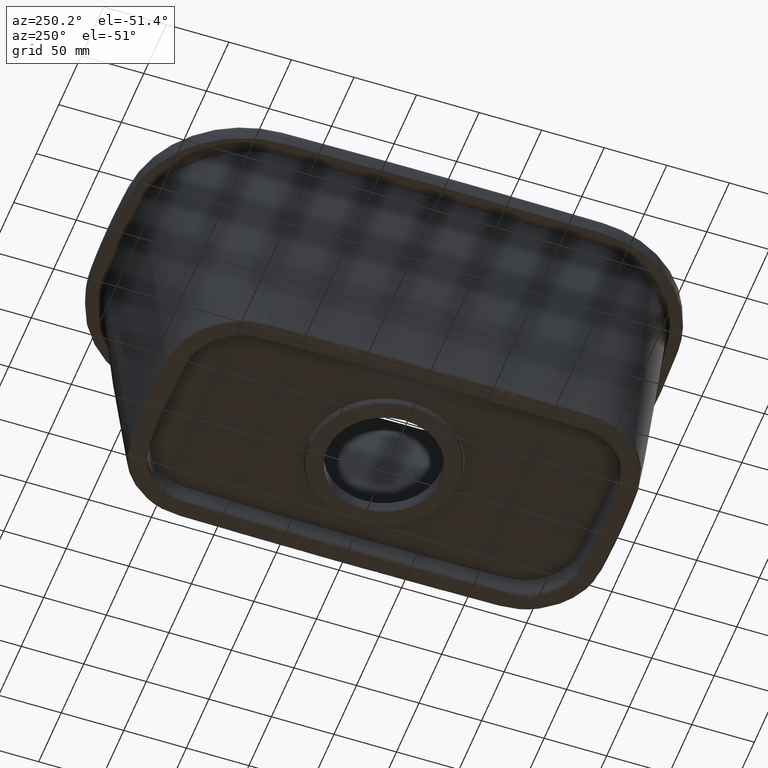
[diagram: clean part render]
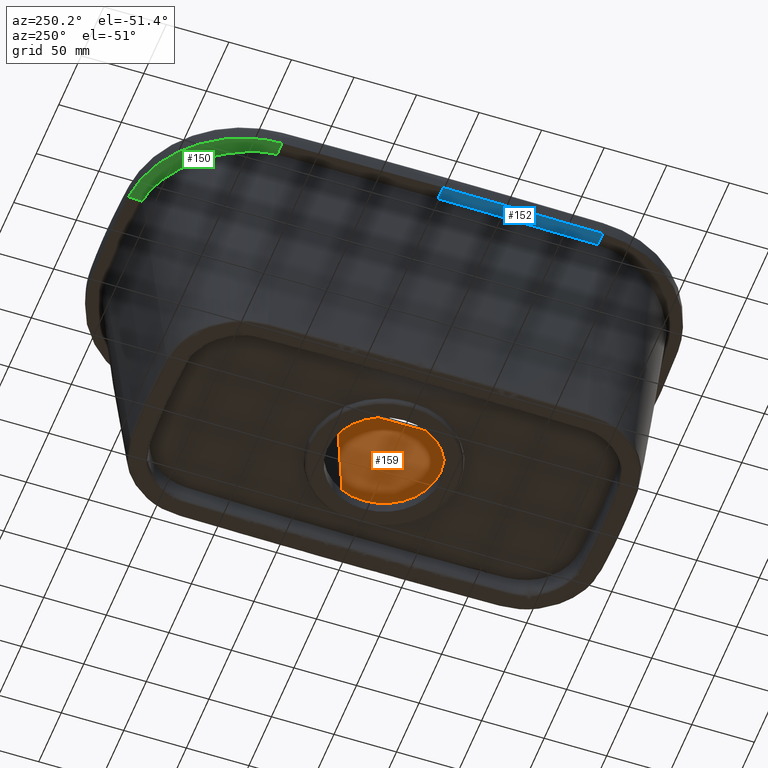
[diagram: same view with three faces highlighted in distinct colors, each labeled with its STEP entity id]
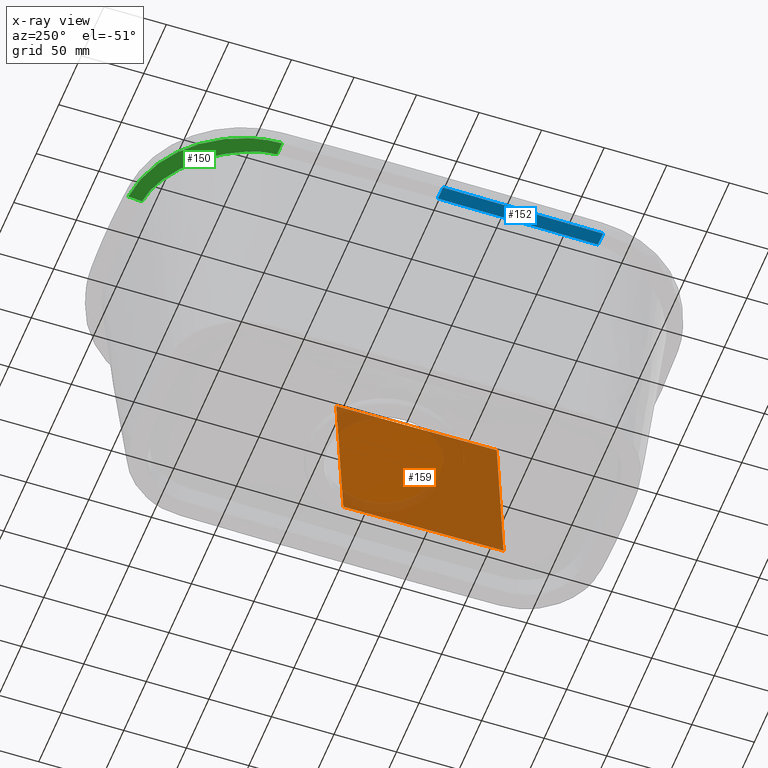
[diagram: x-ray of the same camera — body ghosted, the three highlighted faces saturated]
A machine part, auxiliary view with three faces highlighted in distinct colors.
The next image is the same camera in x-ray (body ghosted, the three faces saturated) — at least one of them is partly hidden behind the body in this view.
Their STEP definitions:

[orange] entity #159 — the highlighted face is a freeform B-spline surface patch.
#82=B_SPLINE_SURFACE_WITH_KNOTS('',3,3,((#74260,#74261,#74262,#74263,#74264,
#74265,#74266,#74267,#74268,#74269,#74270,#74271,#74272,#74273,#74274,#74275,
#74276,#74277,#74278,#74279,#74280,#74281,#74282,#74283,#74284,#74285,#74286,
#74287,#74288,#74289,#74290,#74291,#74292,#74293,#74294,#74295,#74296,#74297,
#74298,#74299,#74300,#74301,#74302,#74303,#74304,#74305,#74306,#74307,#74308,
#74309,#74310,#74311,#74312,#74313,#74314,#74315,#74316,#74317,#74318,#74319,
#74320,#74321),(#74322,#74323,#74324,#74325,#74326,#74327,#74328,#74329,
#74330,#74331,#74332,#74333,#74334,#74335,#74336,#74337,#74338,#74339,#74340,
#74341,#74342,#74343,#74344,#74345,#74346,#74347,#74348,#74349,#74350,#74351,
#74352,#74353,#74354,#74355,#74356,#74357,#74358,#74359,#74360,#74361,#74362,
#74363,#74364,#74365,#74366,#74367,#74368,#74369,#74370,#74371,#74372,#74373,
#74374,#74375,#74376,#74377,#74378,#74379,#74380,#74381,#74382,#74383),
(#74384,#74385,#74386,#74387,#74388,#74389,#74390,#74391,#74392,#74393,
#74394,#74395,#74396,#74397,#74398,#74399,#74400,#74401,#74402,#74403,#74404,
#74405,#74406,#74407,#74408,#74409,#74410,#74411,#74412,#74413,#74414,#74415,
#74416,#74417,#74418,#74419,#74420,#74421,#74422,#74423,#74424,#74425,#74426,
#74427,#74428,#74429,#74430,#74431,#74432,#74433,#74434,#74435,#74436,#74437,
#74438,#74439,#74440,#74441,#74442,#74443,#74444,#74445),(#74446,#74447,
#74448,#74449,#74450,#74451,#74452,#74453,#74454,#74455,#74456,#74457,#74458,
#74459,#74460,#74461,#74462,#74463,#74464,#74465,#74466,#74467,#74468,#74469,
#74470,#74471,#74472,#74473,#74474,#74475,#74476,#74477,#74478,#74479,#74480,
#74481,#74482,#74483,#74484,#74485,#74486,#74487,#74488,#74489,#74490,#74491,
#74492,#74493,#74494,#74495,#74496,#74497,#74498,#74499,#74500,#74501,#74502,
#74503,#74504,#74505,#74506,#74507)),.UNSPECIFIED.,.F.,.F.,.F.,(4,4),(4,
1,1,1,1,1,1,1,1,1,1,1,1,1,1,1,1,1,1,1,1,1,1,1,1,1,1,1,1,1,1,1,1,1,1,1,1,
1,1,1,1,1,1,1,1,1,1,1,1,1,1,1,1,1,1,1,1,1,1,4),(0.,1.),(0.,0.0625,0.064453125,
0.06640625,0.06689453125,0.0673828125,0.068359375,0.0703125,0.07421875,
0.078125,0.08203125,0.0859375,0.08984375,0.091796875,0.0927734375,0.09326171875,
0.09375,0.1015625,0.109375,0.1171875,0.119140625,0.12109375,0.123046875,
0.125,0.12890625,0.1328125,0.140625,0.1484375,0.15234375,0.1533203125,0.15380859375,
0.154296875,0.15478515625,0.1552734375,0.15625,0.1640625,0.171875,0.1796875,
0.18359375,0.1875,0.189453125,0.19140625,0.1953125,0.203125,0.2109375,0.21875,
0.2265625,0.23046875,0.234375,0.23486328125,0.2353515625,0.236328125,0.23828125,
0.2421875,0.25,0.3125,0.375,0.5,0.75,1.),.UNSPECIFIED.);
#159=ADVANCED_FACE('',(#264),#82,.T.);
#264=FACE_OUTER_BOUND('',#346,.T.);
#346=EDGE_LOOP('',(#690,#691,#692,#693));
#425=(
BOUNDED_CURVE()
B_SPLINE_CURVE(3,(#74249,#74250,#74251,#74252,#74253,#74254,#74255,#74256,
#74257,#74258,#74259),.UNSPECIFIED.,.F.,.F.)
B_SPLINE_CURVE_WITH_KNOTS((4,1,1,1,1,1,1,1,4),(0.,0.00193781148128802,0.00705607911471732,
0.0172926143815759,0.0991848965164446,0.181077178651313,0.344861742921051,
0.672430871460525,1.),.UNSPECIFIED.)
CURVE()
GEOMETRIC_REPRESENTATION_ITEM()
RATIONAL_B_SPLINE_CURVE((1.,1.,1.,1.,1.,1.,1.,1.,1.,1.,1.))
REPRESENTATION_ITEM('')
);
#690=ORIENTED_EDGE('',*,*,#1075,.F.);
#691=ORIENTED_EDGE('',*,*,#1074,.T.);
#692=ORIENTED_EDGE('',*,*,#1067,.T.);
#693=ORIENTED_EDGE('',*,*,#1076,.F.);
#900=VERTEX_POINT('',#68950);
#903=VERTEX_POINT('',#69028);
#908=VERTEX_POINT('',#73962);
#909=VERTEX_POINT('',#74248);
#1067=EDGE_CURVE('',#900,#903,#1219,.T.);
#1074=EDGE_CURVE('',#908,#900,#1225,.T.);
#1075=EDGE_CURVE('',#908,#909,#1226,.T.);
#1076=EDGE_CURVE('',#909,#903,#425,.T.);
#1219=B_SPLINE_CURVE_WITH_KNOTS('',3,(#69029,#69030,#69031,#69032),
 .UNSPECIFIED.,.F.,.F.,(4,4),(0.,1.),.UNSPECIFIED.);
#1225=B_SPLINE_CURVE_WITH_KNOTS('',3,(#73985,#73986,#73987,#73988,#73989,
#73990,#73991,#73992,#73993,#73994,#73995),.UNSPECIFIED.,.F.,.F.,(4,1,1,
1,1,1,1,1,4),(0.,0.00193781144588944,0.00705607907950026,0.0172926143467219,
0.0991848964844951,0.181077178622268,0.344861742897815,0.672430871448907,
1.),.UNSPECIFIED.);
#1226=B_SPLINE_CURVE_WITH_KNOTS('',3,(#74244,#74245,#74246,#74247),
 .UNSPECIFIED.,.F.,.F.,(4,4),(0.,1.),.UNSPECIFIED.);
#68950=CARTESIAN_POINT('',(90.3561415384573,1.23908819689549E-15,35.724));
#69028=CARTESIAN_POINT('',(89.3414877071845,-127.720610265477,35.724));
#69029=CARTESIAN_POINT('',(90.3561415384572,-1.44638745425141E-8,35.724));
#69030=CARTESIAN_POINT('',(90.3561416488253,-42.5466784348316,35.724));
#69031=CARTESIAN_POINT('',(90.0179339004727,-85.09335684152,35.724));
#69032=CARTESIAN_POINT('',(89.3415182934245,-127.720610768516,35.724));
#73962=CARTESIAN_POINT('',(106.056943543616,6.22997404768117E-15,175.499999413456));
#73985=CARTESIAN_POINT('',(106.056943543975,-2.28802142859179E-8,175.499999413415));
#73986=CARTESIAN_POINT('',(106.046916526375,-2.28510213036558E-8,175.410506219508));
#73987=CARTESIAN_POINT('',(106.009380445179,-2.27417327407693E-8,175.077548966085));
#73988=CARTESIAN_POINT('',(105.919435325029,-2.24798755998901E-8,174.275707065365));
#73989=CARTESIAN_POINT('',(105.409642728938,-2.09956982355486E-8,169.738960482586));
#73990=CARTESIAN_POINT('',(104.49951047439,-1.83459983316148E-8,161.635289556129));
#73991=CARTESIAN_POINT('',(102.78516272458,-1.3354942152155E-8,146.373315064477));
#73992=CARTESIAN_POINT('',(99.7850541624127,-4.62061292005878E-9,119.664859704086));
#73993=CARTESIAN_POINT('',(95.4991847878874,7.85698242578015E-9,81.5099234749559));
#73994=CARTESIAN_POINT('',(92.0704892882674,1.78390600902301E-8,50.985974491652));
#73995=CARTESIAN_POINT('',(90.3561415384573,2.28301128002428E-8,35.724));
#74244=CARTESIAN_POINT('',(106.056943544251,3.12648240630153E-8,175.499999415881));
#74245=CARTESIAN_POINT('',(106.056943654781,-42.6401000420839,175.499999415881));
#74246=CARTESIAN_POINT('',(105.718241805081,-85.2802001068341,175.499999415881));
#74247=CARTESIAN_POINT('',(105.040837995178,-127.96972990916,175.499999415881));
#74248=CARTESIAN_POINT('',(105.040837995181,-127.96972990916,175.499999417121));
#74249=CARTESIAN_POINT('',(105.040837995453,-127.969729909165,175.499999418329));
#74250=CARTESIAN_POINT('',(105.030811924324,-127.969570813976,175.410506222855));
#74251=CARTESIAN_POINT('',(104.993279386696,-127.968975242086,175.07754896773));
#74252=CARTESIAN_POINT('',(104.903342758031,-127.967548114282,174.275707065365));
#74253=CARTESIAN_POINT('',(104.393598291177,-127.959459413246,169.738960482586));
#74254=CARTESIAN_POINT('',(103.483551961713,-127.945018662701,161.635289556129));
#74255=CARTESIAN_POINT('',(101.769366062526,-127.91781770583,146.373315064477));
#74256=CARTESIAN_POINT('',(98.7695407389501,-127.870216031306,119.664859704086));
#74257=CARTESIAN_POINT('',(94.4840759909839,-127.802213639129,81.5099234749559));
#74258=CARTESIAN_POINT('',(91.055704192611,-127.747811725387,50.985974491652));
#74259=CARTESIAN_POINT('',(89.3415182934245,-127.720610768516,35.724));
#74260=CARTESIAN_POINT('',(129.981515976492,-128.365492297838,159.736));
#74261=CARTESIAN_POINT('',(129.85582680983,-128.363497843442,163.573432496649));
#74262=CARTESIAN_POINT('',(129.726209856711,-128.361441062347,167.530784758819));
#74263=CARTESIAN_POINT('',(129.592665117133,-128.359321954552,171.608056786508));
#74264=CARTESIAN_POINT('',(129.583547753448,-128.359177278868,171.878309662545));
#74265=CARTESIAN_POINT('',(129.57821576207,-128.359092670036,172.057322503594));
#74266=CARTESIAN_POINT('',(129.574090088558,-128.359027203235,172.172841752611));
#74267=CARTESIAN_POINT('',(129.559954525637,-128.358802898019,172.360999202684));
#74268=CARTESIAN_POINT('',(129.497306562238,-128.357808790816,172.757569173706));
#74269=CARTESIAN_POINT('',(129.30239384058,-128.354715886751,173.327595876184));
#74270=CARTESIAN_POINT('',(128.88996411976,-128.348171390583,173.962344390068));
#74271=CARTESIAN_POINT('',(128.323782327364,-128.33918713367,174.479199506181));
#74272=CARTESIAN_POINT('',(127.660690825717,-128.328665099072,174.830349708915));
#74273=CARTESIAN_POINT('',(127.078261742355,-128.319423027728,174.972777118));
#74274=CARTESIAN_POINT('',(126.696724283191,-128.313368734564,175.001295745153));
#74275=CARTESIAN_POINT('',(126.493288257057,-128.310140581436,174.999945488132));
#74276=CARTESIAN_POINT('',(126.373990075768,-128.308247540147,174.999938148568));
#74277=CARTESIAN_POINT('',(125.833702622373,-128.299674178457,175.00024544739));
#74278=CARTESIAN_POINT('',(124.843985315227,-128.283969196985,175.000125333683));
#74279=CARTESIAN_POINT('',(123.404381625722,-128.261125351468,175.00011569263));
#74280=CARTESIAN_POINT('',(122.326127205291,-128.24401544991,174.999529998691));
#74281=CARTESIAN_POINT('',(121.603959727598,-128.232555988936,175.00047000131));
#74282=CARTESIAN_POINT('',(121.25208081593,-128.226972322016,174.998677385468));
#74283=CARTESIAN_POINT('',(120.903524361958,-128.221441376349,175.017974313482));
#74284=CARTESIAN_POINT('',(120.437284794277,-128.214043017526,175.071671762564));
#74285=CARTESIAN_POINT('',(119.848924870239,-128.20470683472,175.192549710164));
#74286=CARTESIAN_POINT('',(118.92430654775,-128.190034853621,175.501851101058));
#74287=CARTESIAN_POINT('',(117.838684571669,-128.172808042595,176.105210107233));
#74288=CARTESIAN_POINT('',(116.946474103287,-128.158650314147,176.944696407813));
#74289=CARTESIAN_POINT('',(116.489169698172,-128.151393739813,177.561013713681));
#74290=CARTESIAN_POINT('',(116.318641669046,-128.148687775677,177.829989978799));
#74291=CARTESIAN_POINT('',(116.259008620468,-128.14774150959,177.928550128868));
#74292=CARTESIAN_POINT('',(116.21549162745,-128.147050975471,178.002820900404));
#74293=CARTESIAN_POINT('',(116.171929793872,-128.146359729815,178.077078583078));
#74294=CARTESIAN_POINT('',(116.112161710956,-128.145411320983,178.175598214142));
#74295=CARTESIAN_POINT('',(115.816855167013,-128.140725352811,178.639937682852));
#74296=CARTESIAN_POINT('',(115.16074543422,-128.13031410596,179.425137531349));
#74297=CARTESIAN_POINT('',(113.960165583101,-128.11126312627,180.301087489298));
#74298=CARTESIAN_POINT('',(112.813571647692,-128.093068803122,180.761889109409));
#74299=CARTESIAN_POINT('',(111.873531586492,-128.07815210758,180.953159696761));
#74300=CARTESIAN_POINT('',(111.286764877042,-128.06884120614,181.001622284464));
#74301=CARTESIAN_POINT('',(110.835946217219,-128.061687548576,181.000574975427));
#74302=CARTESIAN_POINT('',(110.394458582115,-128.054681957102,180.974194756112));
#74303=CARTESIAN_POINT('',(109.591287900875,-128.041937125243,180.860251913716));
#74304=CARTESIAN_POINT('',(108.436766026665,-128.023617000382,180.482243830425));
#74305=CARTESIAN_POINT('',(107.156357564646,-128.003299288418,179.672063733402));
#74306=CARTESIAN_POINT('',(106.115657923138,-127.98678531168,178.561064264965));
#74307=CARTESIAN_POINT('',(105.521924717061,-127.977363864835,177.478812223344));
#74308=CARTESIAN_POINT('',(105.222182090151,-127.972607504238,176.586487122861));
#74309=CARTESIAN_POINT('',(105.12176165866,-127.971014017892,176.112787344255));
#74310=CARTESIAN_POINT('',(105.081072356705,-127.970368353995,175.838881240767));
#74311=CARTESIAN_POINT('',(105.066321980895,-127.970134292837,175.728899542347));
#74312=CARTESIAN_POINT('',(105.044247818267,-127.96978401674,175.529659514555));
#74313=CARTESIAN_POINT('',(104.996510803007,-127.96902651868,175.106359087034));
#74314=CARTESIAN_POINT('',(104.903342758031,-127.967548114282,174.275707065365));
#74315=CARTESIAN_POINT('',(104.393598291177,-127.959459413246,169.738960482586));
#74316=CARTESIAN_POINT('',(103.483551961713,-127.945018662701,161.635289556129));
#74317=CARTESIAN_POINT('',(101.769366062526,-127.91781770583,146.373315064477));
#74318=CARTESIAN_POINT('',(98.7695407389501,-127.870216031306,119.664859704086));
#74319=CARTESIAN_POINT('',(94.4840759909839,-127.802213639129,81.5099234749559));
#74320=CARTESIAN_POINT('',(91.055704192611,-127.747811725387,50.985974491652));
#74321=CARTESIAN_POINT('',(89.3415182934245,-127.720610768516,35.724));
#74322=CARTESIAN_POINT('',(131.33946318581,-42.7885778862101,159.736));
#74323=CARTESIAN_POINT('',(131.213758195995,-42.7875805962452,163.573432496649));
#74324=CARTESIAN_POINT('',(131.084124925248,-42.7865521409689,167.530784758819));
#74325=CARTESIAN_POINT('',(130.95056337357,-42.7854925203811,171.608056786508));
#74326=CARTESIAN_POINT('',(130.941444862089,-42.7854201779864,171.878309662545));
#74327=CARTESIAN_POINT('',(130.936112199461,-42.7853778709074,172.057322503594));
#74328=CARTESIAN_POINT('',(130.931986006563,-42.7853451354466,172.172841752611));
#74329=CARTESIAN_POINT('',(130.9178486641,-42.7852329757798,172.360999202684));
#74330=CARTESIAN_POINT('',(130.855192813877,-42.7847358908927,172.757569173706));
#74331=CARTESIAN_POINT('',(130.660255554432,-42.7831893415241,173.327595876184));
#74332=CARTESIAN_POINT('',(130.247773912361,-42.7799168874793,173.962344390068));
#74333=CARTESIAN_POINT('',(129.681520842689,-42.7754244762805,174.479199506181));
#74334=CARTESIAN_POINT('',(129.018345863691,-42.7701631278445,174.830349708915));
#74335=CARTESIAN_POINT('',(128.435843457663,-42.7655418013169,174.972777118));
#74336=CARTESIAN_POINT('',(128.054257966311,-42.7625144642013,175.001295745153));
#74337=CARTESIAN_POINT('',(127.850796329381,-42.7609002860445,174.999945488132));
#74338=CARTESIAN_POINT('',(127.731483129507,-42.7599537058244,174.999938148568));
#74339=CARTESIAN_POINT('',(127.191127658705,-42.7556667551686,175.00024544739));
#74340=CARTESIAN_POINT('',(126.20128575491,-42.7478137701838,175.000125333683));
#74341=CARTESIAN_POINT('',(124.761500832043,-42.7363911285102,175.00011569263));
#74342=CARTESIAN_POINT('',(123.683110668925,-42.7278356392687,174.999529998691));
#74343=CARTESIAN_POINT('',(122.960852276739,-42.7221055481428,175.00047000131));
#74344=CARTESIAN_POINT('',(122.60892906663,-42.7193135389601,174.998677385468));
#74345=CARTESIAN_POINT('',(122.260328732486,-42.7165478920632,175.017974313482));
#74346=CARTESIAN_POINT('',(121.794030469371,-42.712848479819,175.071671762564));
#74347=CARTESIAN_POINT('',(121.205596476026,-42.7081800945986,175.192549710164));
#74348=CARTESIAN_POINT('',(120.280861752274,-42.7008436423099,175.501851101058));
#74349=CARTESIAN_POINT('',(119.195103105996,-42.6922296946546,176.105210107233));
#74350=CARTESIAN_POINT('',(118.302780316213,-42.685150384875,176.944696407813));
#74351=CARTESIAN_POINT('',(117.845418340522,-42.6815218693374,177.561013713681));
#74352=CARTESIAN_POINT('',(117.674868843426,-42.6801688021105,177.829989978799));
#74353=CARTESIAN_POINT('',(117.615228287576,-42.6796956392874,177.928550128868));
#74354=CARTESIAN_POINT('',(117.571705816153,-42.6793503504961,178.002820900404));
#74355=CARTESIAN_POINT('',(117.528138498526,-42.679004705914,178.077078583078));
#74356=CARTESIAN_POINT('',(117.468362891338,-42.678530471651,178.175598214142));
#74357=CARTESIAN_POINT('',(117.173019170915,-42.6761873400934,178.639937682852));
#74358=CARTESIAN_POINT('',(116.516826839714,-42.6709813890175,179.425137531349));
#74359=CARTESIAN_POINT('',(115.316095846218,-42.6614552996223,180.301087489298));
#74360=CARTESIAN_POINT('',(114.169357564782,-42.6523575654578,180.761889109409));
#74361=CARTESIAN_POINT('',(113.229199160859,-42.6448987482457,180.953159696761));
#74362=CARTESIAN_POINT('',(112.642358582674,-42.6402430045039,181.001622284464));
#74363=CARTESIAN_POINT('',(112.191483168773,-42.6366659505907,181.000574975427));
#74364=CARTESIAN_POINT('',(111.749939954283,-42.6331629343815,180.974194756112));
#74365=CARTESIAN_POINT('',(110.946668160964,-42.6267901173615,180.860251913716));
#74366=CARTESIAN_POINT('',(109.792000942669,-42.6176294783818,180.482243830425));
#74367=CARTESIAN_POINT('',(108.511431288558,-42.6074699829844,179.672063733402));
#74368=CARTESIAN_POINT('',(107.470600632177,-42.5992124749067,178.561064264965));
#74369=CARTESIAN_POINT('',(106.876792680346,-42.5945014549835,177.478812223344));
#74370=CARTESIAN_POINT('',(106.577012318492,-42.5921231249983,176.586487122861));
#74371=CARTESIAN_POINT('',(106.476579244958,-42.5913263316767,176.112787344255));
#74372=CARTESIAN_POINT('',(106.43588482058,-42.5910034794087,175.838881240767));
#74373=CARTESIAN_POINT('',(106.421132587828,-42.5908864414637,175.728899542347));
#74374=CARTESIAN_POINT('',(106.399055646258,-42.5907112923919,175.529659514555));
#74375=CARTESIAN_POINT('',(106.35131262133,-42.5903325195228,175.106359087034));
#74376=CARTESIAN_POINT('',(106.258132847322,-42.5895932707969,174.275707065365));
#74377=CARTESIAN_POINT('',(105.748324208152,-42.585548665721,169.738960482586));
#74378=CARTESIAN_POINT('',(104.83816331191,-42.5783278359859,161.635289556129));
#74379=CARTESIAN_POINT('',(103.123761611892,-42.5647265015137,146.373315064477));
#74380=CARTESIAN_POINT('',(100.123558636861,-42.5409241661873,119.664859704086));
#74381=CARTESIAN_POINT('',(95.8375543868159,-42.5069208300068,81.5099234749559));
#74382=CARTESIAN_POINT('',(92.40875098678,-42.4797181610624,50.985974491652));
#74383=CARTESIAN_POINT('',(90.6943492867621,-42.4661168265902,35.724));
#74384=CARTESIAN_POINT('',(131.339463185883,42.7885361988748,159.736));
#74385=CARTESIAN_POINT('',(131.213758196068,42.78753890891,163.573432496649));
#74386=CARTESIAN_POINT('',(131.084124925322,42.7865104536337,167.530784758819));
#74387=CARTESIAN_POINT('',(130.950563373644,42.7854508330461,171.608056786508));
#74388=CARTESIAN_POINT('',(130.941444862163,42.7853784906514,171.878309662545));
#74389=CARTESIAN_POINT('',(130.936112199534,42.7853361835724,172.057322503594));
#74390=CARTESIAN_POINT('',(130.931986006637,42.7853034481116,172.172841752611));
#74391=CARTESIAN_POINT('',(130.917848664174,42.7851912884449,172.360999202684));
#74392=CARTESIAN_POINT('',(130.85519281395,42.7846942035578,172.757569173706));
#74393=CARTESIAN_POINT('',(130.660255554506,42.7831476541893,173.327595876184));
#74394=CARTESIAN_POINT('',(130.247773912435,42.779875200145,173.962344390068));
#74395=CARTESIAN_POINT('',(129.681520842763,42.7753827889467,174.479199506181));
#74396=CARTESIAN_POINT('',(129.018345863765,42.7701214405113,174.830349708915));
#74397=CARTESIAN_POINT('',(128.435843457737,42.7655001139843,174.972777118));
#74398=CARTESIAN_POINT('',(128.054257966384,42.762472776869,175.001295745153));
#74399=CARTESIAN_POINT('',(127.850796329455,42.7608585987124,174.999945488132));
#74400=CARTESIAN_POINT('',(127.731483129581,42.7599120184924,174.999938148568));
#74401=CARTESIAN_POINT('',(127.191127658778,42.7556250678371,175.00024544739));
#74402=CARTESIAN_POINT('',(126.201285754984,42.7477720828532,175.000125333683));
#74403=CARTESIAN_POINT('',(124.761500832117,42.7363494411809,175.00011569263));
#74404=CARTESIAN_POINT('',(123.683110668998,42.7277939519404,174.999529998691));
#74405=CARTESIAN_POINT('',(122.960852276813,42.7220638608152,175.00047000131));
#74406=CARTESIAN_POINT('',(122.608929066704,42.7192718516329,174.998677385468));
#74407=CARTESIAN_POINT('',(122.26032873256,42.7165062047362,175.017974313482));
#74408=CARTESIAN_POINT('',(121.794030469444,42.7128067924925,175.071671762564));
#74409=CARTESIAN_POINT('',(121.2055964761,42.7081384072726,175.192549710164));
#74410=CARTESIAN_POINT('',(120.280861752348,42.7008019549848,175.501851101058));
#74411=CARTESIAN_POINT('',(119.19510310607,42.6921880073305,176.105210107233));
#74412=CARTESIAN_POINT('',(118.302780316287,42.6851086975518,176.944696407813));
#74413=CARTESIAN_POINT('',(117.845418340596,42.6814801820146,177.561013713681));
#74414=CARTESIAN_POINT('',(117.6748688435,42.6801271147878,177.829989978799));
#74415=CARTESIAN_POINT('',(117.615228287649,42.6796539519648,177.928550128868));
#74416=CARTESIAN_POINT('',(117.571705816227,42.6793086631735,178.002820900404));
#74417=CARTESIAN_POINT('',(117.5281384986,42.6789630185915,178.077078583078));
#74418=CARTESIAN_POINT('',(117.468362891411,42.6784887843285,178.175598214142));
#74419=CARTESIAN_POINT('',(117.173019170988,42.6761456527712,178.639937682852));
#74420=CARTESIAN_POINT('',(116.516826839788,42.6709397016959,179.425137531349));
#74421=CARTESIAN_POINT('',(115.316095846292,42.6614136123018,180.301087489298));
#74422=CARTESIAN_POINT('',(114.169357564856,42.6523158781384,180.761889109409));
#74423=CARTESIAN_POINT('',(113.229199160933,42.6448570609271,180.953159696761));
#74424=CARTESIAN_POINT('',(112.642358582748,42.6402013171859,181.001622284464));
#74425=CARTESIAN_POINT('',(112.191483168846,42.6366242632731,181.000574975427));
#74426=CARTESIAN_POINT('',(111.749939954357,42.6331212470644,180.974194756112));
#74427=CARTESIAN_POINT('',(110.946668161037,42.6267484300451,180.860251913716));
#74428=CARTESIAN_POINT('',(109.792000942742,42.6175877910664,180.482243830425));
#74429=CARTESIAN_POINT('',(108.511431288631,42.6074282956703,179.672063733402));
#74430=CARTESIAN_POINT('',(107.470600632251,42.5991707875935,178.561064264965));
#74431=CARTESIAN_POINT('',(106.876792680419,42.5944597676709,177.478812223344));
#74432=CARTESIAN_POINT('',(106.577012318565,42.592081437686,176.586487122861));
#74433=CARTESIAN_POINT('',(106.476579245031,42.5912846443644,176.112787344255));
#74434=CARTESIAN_POINT('',(106.435884820653,42.5909617920965,175.838881240767));
#74435=CARTESIAN_POINT('',(106.421132587901,42.5908447541515,175.728899542347));
#74436=CARTESIAN_POINT('',(106.399055646331,42.5906696050797,175.529659514555));
#74437=CARTESIAN_POINT('',(106.351312621403,42.5902908322106,175.106359087034));
#74438=CARTESIAN_POINT('',(106.258132847395,42.5895515834849,174.275707065365));
#74439=CARTESIAN_POINT('',(105.748324208226,42.5855069784093,169.738960482586));
#74440=CARTESIAN_POINT('',(104.838163311983,42.5782861486751,161.635289556129));
#74441=CARTESIAN_POINT('',(103.123761611965,42.5646848142045,146.373315064477));
#74442=CARTESIAN_POINT('',(100.123558636934,42.5408824788809,119.664859704086));
#74443=CARTESIAN_POINT('',(95.8375543868891,42.5068791427044,81.5099234749559));
#74444=CARTESIAN_POINT('',(92.4087509868532,42.4796764737631,50.985974491652));
#74445=CARTESIAN_POINT('',(90.6943492868352,42.4660751392925,35.724));
#74446=CARTESIAN_POINT('',(129.981515976509,128.365450614782,159.736));
#74447=CARTESIAN_POINT('',(129.855826809848,128.363456160386,163.573432496649));
#74448=CARTESIAN_POINT('',(129.726209856729,128.361399379291,167.530784758819));
#74449=CARTESIAN_POINT('',(129.592665117151,128.359280271495,171.608056786508));
#74450=CARTESIAN_POINT('',(129.583547753466,128.359135595812,171.878309662545));
#74451=CARTESIAN_POINT('',(129.578215762087,128.359050986979,172.057322503594));
#74452=CARTESIAN_POINT('',(129.574090088576,128.358985520178,172.172841752611));
#74453=CARTESIAN_POINT('',(129.559954525655,128.358761214963,172.360999202684));
#74454=CARTESIAN_POINT('',(129.497306562255,128.35776710776,172.757569173706));
#74455=CARTESIAN_POINT('',(129.302393840597,128.354674203695,173.327595876184));
#74456=CARTESIAN_POINT('',(128.889964119777,128.348129707527,173.962344390068));
#74457=CARTESIAN_POINT('',(128.323782327381,128.339145450613,174.479199506181));
#74458=CARTESIAN_POINT('',(127.660690825734,128.328623416016,174.830349708915));
#74459=CARTESIAN_POINT('',(127.078261742372,128.319381344672,174.972777118));
#74460=CARTESIAN_POINT('',(126.696724283209,128.313327051508,175.001295745153));
#74461=CARTESIAN_POINT('',(126.493288257074,128.31009889838,174.999945488132));
#74462=CARTESIAN_POINT('',(126.373990075785,128.308205857091,174.999938148568));
#74463=CARTESIAN_POINT('',(125.833702622391,128.299632495401,175.00024544739));
#74464=CARTESIAN_POINT('',(124.843985315245,128.283927513929,175.000125333683));
#74465=CARTESIAN_POINT('',(123.404381625739,128.261083668412,175.00011569263));
#74466=CARTESIAN_POINT('',(122.326127205308,128.243973766855,174.999529998691));
#74467=CARTESIAN_POINT('',(121.603959727616,128.232514305881,175.00047000131));
#74468=CARTESIAN_POINT('',(121.252080815947,128.226930638961,174.998677385468));
#74469=CARTESIAN_POINT('',(120.903524361975,128.221399693294,175.017974313482));
#74470=CARTESIAN_POINT('',(120.437284794295,128.214001334471,175.071671762564));
#74471=CARTESIAN_POINT('',(119.848924870257,128.204665151665,175.192549710164));
#74472=CARTESIAN_POINT('',(118.924306547767,128.189993170566,175.501851101058));
#74473=CARTESIAN_POINT('',(117.838684571686,128.17276635954,176.105210107233));
#74474=CARTESIAN_POINT('',(116.946474103304,128.158608631092,176.944696407813));
#74475=CARTESIAN_POINT('',(116.489169698189,128.151352056758,177.561013713681));
#74476=CARTESIAN_POINT('',(116.318641669063,128.148646092622,177.829989978799));
#74477=CARTESIAN_POINT('',(116.259008620485,128.147699826536,177.928550128868));
#74478=CARTESIAN_POINT('',(116.215491627467,128.147009292416,178.002820900404));
#74479=CARTESIAN_POINT('',(116.17192979389,128.14631804676,178.077078583078));
#74480=CARTESIAN_POINT('',(116.112161710974,128.145369637929,178.175598214142));
#74481=CARTESIAN_POINT('',(115.81685516703,128.140683669756,178.639937682852));
#74482=CARTESIAN_POINT('',(115.160745434238,128.130272422906,179.425137531349));
#74483=CARTESIAN_POINT('',(113.960165583118,128.111221443216,180.301087489298));
#74484=CARTESIAN_POINT('',(112.813571647709,128.093027120068,180.761889109409));
#74485=CARTESIAN_POINT('',(111.873531586509,128.078110424526,180.953159696761));
#74486=CARTESIAN_POINT('',(111.286764877059,128.068799523086,181.001622284464));
#74487=CARTESIAN_POINT('',(110.835946217236,128.061645865523,181.000574975427));
#74488=CARTESIAN_POINT('',(110.394458582132,128.054640274048,180.974194756112));
#74489=CARTESIAN_POINT('',(109.591287900892,128.041895442189,180.860251913716));
#74490=CARTESIAN_POINT('',(108.436766026682,128.023575317329,180.482243830425));
#74491=CARTESIAN_POINT('',(107.156357564663,128.003257605365,179.672063733402));
#74492=CARTESIAN_POINT('',(106.115657923155,127.986743628627,178.561064264965));
#74493=CARTESIAN_POINT('',(105.521924717079,127.977322181782,177.478812223344));
#74494=CARTESIAN_POINT('',(105.222182090168,127.972565821185,176.586487122861));
#74495=CARTESIAN_POINT('',(105.121761658677,127.970972334838,176.112787344255));
#74496=CARTESIAN_POINT('',(105.081072356723,127.970326670942,175.838881240767));
#74497=CARTESIAN_POINT('',(105.066321980913,127.970092609784,175.728899542347));
#74498=CARTESIAN_POINT('',(105.044247818284,127.969742333687,175.529659514555));
#74499=CARTESIAN_POINT('',(104.996510803024,127.968984835627,175.106359087034));
#74500=CARTESIAN_POINT('',(104.903342758048,127.967506431229,174.275707065365));
#74501=CARTESIAN_POINT('',(104.393598291195,127.959417730193,169.738960482586));
#74502=CARTESIAN_POINT('',(103.48355196173,127.944976979648,161.635289556129));
#74503=CARTESIAN_POINT('',(101.769366062544,127.917776022777,146.373315064477));
#74504=CARTESIAN_POINT('',(98.7695407389674,127.870174348254,119.664859704086));
#74505=CARTESIAN_POINT('',(94.4840759910011,127.802171956077,81.5099234749559));
#74506=CARTESIAN_POINT('',(91.0557041926282,127.747770042336,50.985974491652));
#74507=CARTESIAN_POINT('',(89.3415182934417,127.720569085465,35.724));

[blue] entity #152 — the highlighted face is a freeform B-spline surface patch.
#79=B_SPLINE_SURFACE_WITH_KNOTS('',3,3,((#68697,#68698,#68699,#68700),(#68701,
#68702,#68703,#68704),(#68705,#68706,#68707,#68708),(#68709,#68710,#68711,
#68712)),.UNSPECIFIED.,.F.,.F.,.F.,(4,4),(4,4),(0.,1.),(0.,1.),
 .UNSPECIFIED.);
#152=ADVANCED_FACE('',(#257),#79,.T.);
#257=FACE_OUTER_BOUND('',#339,.T.);
#339=EDGE_LOOP('',(#660,#661,#662,#663));
#660=ORIENTED_EDGE('',*,*,#1023,.T.);
#661=ORIENTED_EDGE('',*,*,#1036,.T.);
#662=ORIENTED_EDGE('',*,*,#1057,.F.);
#663=ORIENTED_EDGE('',*,*,#1055,.T.);
#866=VERTEX_POINT('',#65554);
#879=VERTEX_POINT('',#67870);
#887=VERTEX_POINT('',#68365);
#897=VERTEX_POINT('',#68672);
#1023=EDGE_CURVE('',#879,#866,#1188,.T.);
#1036=EDGE_CURVE('',#866,#887,#1195,.T.);
#1055=EDGE_CURVE('',#897,#879,#1208,.T.);
#1057=EDGE_CURVE('',#897,#887,#1210,.T.);
#1188=B_SPLINE_CURVE_WITH_KNOTS('',3,(#68047,#68048,#68049,#68050),
 .UNSPECIFIED.,.F.,.F.,(4,4),(0.,1.),.UNSPECIFIED.);
#1195=B_SPLINE_CURVE_WITH_KNOTS('',3,(#68366,#68367,#68368,#68369),
 .UNSPECIFIED.,.F.,.F.,(4,4),(0.,1.),.UNSPECIFIED.);
#1208=B_SPLINE_CURVE_WITH_KNOTS('',3,(#68668,#68669,#68670,#68671),
 .UNSPECIFIED.,.F.,.F.,(4,4),(0.,1.),.UNSPECIFIED.);
#1210=B_SPLINE_CURVE_WITH_KNOTS('',3,(#68693,#68694,#68695,#68696),
 .UNSPECIFIED.,.F.,.F.,(4,4),(0.,1.),.UNSPECIFIED.);
#65554=CARTESIAN_POINT('',(-118.628296784539,-128.185337726661,159.736000000014));
#67870=CARTESIAN_POINT('',(-119.645685239205,-4.21003076753101E-16,159.736000000014));
#68047=CARTESIAN_POINT('',(-119.645685239205,5.67480680502275E-8,159.736));
#68048=CARTESIAN_POINT('',(-119.6456853498,-42.7209546529971,159.736));
#68049=CARTESIAN_POINT('',(-119.306555864902,-85.4419093585436,159.736));
#68050=CARTESIAN_POINT('',(-118.628296784539,-128.185337726661,159.736));
#68365=CARTESIAN_POINT('',(-129.981515976492,-128.365492297838,159.736));
#68366=CARTESIAN_POINT('',(-118.628296784539,-128.185337726661,159.736));
#68367=CARTESIAN_POINT('',(-122.412703181857,-128.245389250387,159.736));
#68368=CARTESIAN_POINT('',(-126.197109579175,-128.305440774112,159.736));
#68369=CARTESIAN_POINT('',(-129.981515976493,-128.365492297838,159.736));
#68668=CARTESIAN_POINT('',(-130.999976383511,-1.64787246348386E-8,159.736));
#68669=CARTESIAN_POINT('',(-127.215212668742,-5.50158866810904E-9,159.736));
#68670=CARTESIAN_POINT('',(-123.430448953974,5.47555127470051E-9,159.736));
#68671=CARTESIAN_POINT('',(-119.645685239205,1.64526861641919E-8,159.736));
#68672=CARTESIAN_POINT('',(-130.99997638351,4.04768811061255E-15,159.736));
#68693=CARTESIAN_POINT('',(-130.99997638351,-1.30387714514235E-9,159.736));
#68694=CARTESIAN_POINT('',(-130.999976493739,-42.7885140732932,159.736));
#68695=CARTESIAN_POINT('',(-130.660489691391,-85.5770281447558,159.736));
#68696=CARTESIAN_POINT('',(-129.981515976492,-128.365492297838,159.736));
#68697=CARTESIAN_POINT('',(-129.981515976493,-128.365492297838,159.736));
#68698=CARTESIAN_POINT('',(-124.982145353002,-128.286161541019,159.736));
#68699=CARTESIAN_POINT('',(-119.982774729511,-128.2068307842,159.736));
#68700=CARTESIAN_POINT('',(-114.98340410602,-128.127500027381,159.736));
#68701=CARTESIAN_POINT('',(-131.339463185811,-42.7885778862101,159.736));
#68702=CARTESIAN_POINT('',(-126.339463185811,-42.7489100111956,159.736));
#68703=CARTESIAN_POINT('',(-121.339463185811,-42.709242136181,159.736));
#68704=CARTESIAN_POINT('',(-116.339463185811,-42.6695742611665,159.736));
#68705=CARTESIAN_POINT('',(-131.339463185884,42.7885361988748,159.736));
#68706=CARTESIAN_POINT('',(-126.339463185884,42.7488683238649,159.736));
#68707=CARTESIAN_POINT('',(-121.339463185884,42.7092004488549,159.736));
#68708=CARTESIAN_POINT('',(-116.339463185884,42.669532573845,159.736));
#68709=CARTESIAN_POINT('',(-129.98151597651,128.365450614782,159.736));
#68710=CARTESIAN_POINT('',(-124.982145353019,128.286119857963,159.736));
#68711=CARTESIAN_POINT('',(-119.982774729528,128.206789101145,159.736));
#68712=CARTESIAN_POINT('',(-114.983404106038,128.127458344326,159.736));

[green] entity #150 — the highlighted face is a freeform B-spline surface patch.
#150=ADVANCED_FACE('',(#255),#198,.F.);
#198=(
BOUNDED_SURFACE()
B_SPLINE_SURFACE(3,3,((#68640,#68641,#68642,#68643),(#68644,#68645,#68646,
#68647),(#68648,#68649,#68650,#68651),(#68652,#68653,#68654,#68655),(#68656,
#68657,#68658,#68659),(#68660,#68661,#68662,#68663),(#68664,#68665,#68666,
#68667)),.UNSPECIFIED.,.F.,.F.,.F.)
B_SPLINE_SURFACE_WITH_KNOTS((4,1,1,1,4),(4,4),(0.,0.25,0.5,0.75,1.),(0.,
1.),.UNSPECIFIED.)
GEOMETRIC_REPRESENTATION_ITEM()
RATIONAL_B_SPLINE_SURFACE(((1.,1.,1.,1.),(0.955564956617656,0.955564956617656,
0.955564956617656,0.955564956617656),(0.888912391544141,0.888912391544141,
0.888912391544141,0.888912391544141),(0.855586109007383,0.855586109007383,
0.855586109007383,0.855586109007383),(0.888912391544141,0.888912391544141,
0.888912391544141,0.888912391544141),(0.955564956617656,0.955564956617656,
0.955564956617656,0.955564956617656),(1.,1.,1.,1.)))
REPRESENTATION_ITEM('')
SURFACE()
);
#255=FACE_OUTER_BOUND('',#337,.T.);
#337=EDGE_LOOP('',(#651,#652,#653,#654,#655));
#421=(
BOUNDED_CURVE()
B_SPLINE_CURVE(3,(#68603,#68604,#68605,#68606),.UNSPECIFIED.,.F.,.F.)
B_SPLINE_CURVE_WITH_KNOTS((4,4),(0.,1.),.UNSPECIFIED.)
CURVE()
GEOMETRIC_REPRESENTATION_ITEM()
RATIONAL_B_SPLINE_CURVE((1.,1.,1.,1.))
REPRESENTATION_ITEM('')
);
#422=(
BOUNDED_CURVE()
B_SPLINE_CURVE(3,(#68633,#68634,#68635,#68636,#68637,#68638,#68639),
 .UNSPECIFIED.,.F.,.F.)
B_SPLINE_CURVE_WITH_KNOTS((4,1,1,1,4),(0.,0.25,0.5,0.75,1.),
 .UNSPECIFIED.)
CURVE()
GEOMETRIC_REPRESENTATION_ITEM()
RATIONAL_B_SPLINE_CURVE((1.,0.955564956617657,0.888912391544141,0.855586109007384,
0.888912391544141,0.955564956617657,1.))
REPRESENTATION_ITEM('')
);
#651=ORIENTED_EDGE('',*,*,#1020,.T.);
#652=ORIENTED_EDGE('',*,*,#1019,.T.);
#653=ORIENTED_EDGE('',*,*,#1053,.F.);
#654=ORIENTED_EDGE('',*,*,#1054,.F.);
#655=ORIENTED_EDGE('',*,*,#1051,.T.);
#876=VERTEX_POINT('',#67350);
#877=VERTEX_POINT('',#67532);
#878=VERTEX_POINT('',#67599);
#895=VERTEX_POINT('',#68607);
#896=VERTEX_POINT('',#68632);
#1019=EDGE_CURVE('',#878,#877,#1184,.T.);
#1020=EDGE_CURVE('',#876,#878,#1185,.T.);
#1051=EDGE_CURVE('',#895,#876,#421,.T.);
#1053=EDGE_CURVE('',#896,#877,#1207,.T.);
#1054=EDGE_CURVE('',#895,#896,#422,.T.);
#1184=B_SPLINE_CURVE_WITH_KNOTS('',3,(#67533,#67534,#67535,#67536,#67537,
#67538,#67539,#67540,#67541,#67542,#67543,#67544,#67545,#67546,#67547,#67548,
#67549,#67550,#67551,#67552,#67553,#67554,#67555,#67556,#67557,#67558,#67559,
#67560,#67561,#67562,#67563,#67564,#67565,#67566,#67567,#67568,#67569,#67570,
#67571,#67572,#67573,#67574,#67575,#67576,#67577,#67578,#67579,#67580,#67581,
#67582,#67583,#67584,#67585,#67586,#67587,#67588,#67589,#67590,#67591,#67592,
#67593,#67594,#67595,#67596,#67597,#67598),.UNSPECIFIED.,.F.,.F.,(4,2,2,
2,2,2,2,2,2,2,2,1,2,2,2,2,2,2,2,2,2,2,2,2,2,2,2,2,2,2,1,2,2,4),(0.,0.124999999999997,
0.187499999999996,0.218749999999995,0.249999999999995,0.312499999999993,
0.343749999999993,0.359374999999993,0.374999999999992,0.437499999999991,
0.468749999999991,0.484374999999991,0.49218749999999,0.49999999999999,0.562499999999987,
0.593749999999985,0.609374999999985,0.617187499999985,0.624999999999985,
0.656249999999986,0.671874999999987,0.679687499999988,0.68359374999999,
0.687499999999991,0.71875,0.734375000000003,0.742187500000005,0.750000000000007,
0.812500000000015,0.843750000000018,0.85937500000002,0.867187500000019,
0.875000000000019,1.),.UNSPECIFIED.);
#1185=B_SPLINE_CURVE_WITH_KNOTS('',3,(#67600,#67601,#67602,#67603,#67604,
#67605,#67606,#67607,#67608,#67609,#67610,#67611,#67612,#67613,#67614,#67615,
#67616,#67617,#67618,#67619,#67620,#67621,#67622,#67623,#67624,#67625,#67626,
#67627,#67628,#67629,#67630,#67631,#67632,#67633,#67634,#67635,#67636,#67637,
#67638,#67639,#67640,#67641,#67642,#67643,#67644,#67645,#67646,#67647,#67648,
#67649,#67650,#67651,#67652,#67653,#67654,#67655,#67656,#67657,#67658,#67659,
#67660,#67661,#67662),.UNSPECIFIED.,.F.,.F.,(4,2,2,1,2,2,2,2,1,2,2,2,2,
1,2,2,2,2,2,2,2,2,2,2,2,2,2,2,2,2,2,2,4),(0.,0.0624999999999984,0.0937499999999978,
0.109374999999997,0.117187499999997,0.124999999999997,0.187499999999996,
0.218749999999995,0.234374999999995,0.242187499999994,0.249999999999994,
0.281249999999992,0.296874999999991,0.30468749999999,0.30859374999999,0.31249999999999,
0.343749999999988,0.359374999999986,0.367187499999986,0.374999999999985,
0.437499999999982,0.468749999999981,0.48437499999998,0.492187499999981,
0.499999999999981,0.562499999999982,0.593749999999983,0.609374999999984,
0.624999999999985,0.687499999999989,0.71874999999999,0.749999999999992,
1.),.UNSPECIFIED.);
#1207=B_SPLINE_CURVE_WITH_KNOTS('',3,(#68628,#68629,#68630,#68631),
 .UNSPECIFIED.,.F.,.F.,(4,4),(0.,1.),.UNSPECIFIED.);
#67350=CARTESIAN_POINT('',(-41.8830350574566,208.388732603336,159.736000000014));
#67532=CARTESIAN_POINT('',(-118.628296784539,128.185337726661,159.736000000014));
#67533=CARTESIAN_POINT('',(-93.4187234839967,180.882540617665,159.736));
#67534=CARTESIAN_POINT('',(-95.0849277165636,179.141257403406,159.736));
#67535=CARTESIAN_POINT('',(-96.7222551051397,177.315844803531,159.736));
#67536=CARTESIAN_POINT('',(-99.1148862315486,174.450992531681,159.736));
#67537=CARTESIAN_POINT('',(-99.9018543397572,173.474962730534,159.736));
#67538=CARTESIAN_POINT('',(-101.063841402458,171.97962326536,159.736));
#67539=CARTESIAN_POINT('',(-101.448092481876,171.475963710378,159.736));
#67540=CARTESIAN_POINT('',(-102.210002128942,170.458304865317,159.736));
#67541=CARTESIAN_POINT('',(-102.613203101042,169.908866066434,159.736));
#67542=CARTESIAN_POINT('',(-103.659007466665,168.457838677413,159.736));
#67543=CARTESIAN_POINT('',(-104.354924299767,167.45739714913,159.736));
#67544=CARTESIAN_POINT('',(-105.391303572355,165.905934233782,159.736));
#67545=CARTESIAN_POINT('',(-105.735510151015,165.380318726739,159.736));
#67546=CARTESIAN_POINT('',(-106.249212616361,164.579111108439,159.736));
#67547=CARTESIAN_POINT('',(-106.4200119994,164.309911561574,159.736));
#67548=CARTESIAN_POINT('',(-106.760617632037,163.767241100423,159.736));
#67549=CARTESIAN_POINT('',(-106.951389973274,163.459627977155,159.736));
#67550=CARTESIAN_POINT('',(-107.692795395332,162.252287442226,159.736));
#67551=CARTESIAN_POINT('',(-108.298675648301,161.228497924199,159.736));
#67552=CARTESIAN_POINT('',(-109.215462719162,159.603079974296,159.736));
#67553=CARTESIAN_POINT('',(-109.522372733457,159.046327893537,159.736));
#67554=CARTESIAN_POINT('',(-109.983197507253,158.188523936231,159.736));
#67555=CARTESIAN_POINT('',(-110.213723669661,157.753954167211,159.736));
#67556=CARTESIAN_POINT('',(-110.444126899159,157.310845839484,159.736));
#67557=CARTESIAN_POINT('',(-110.597668442071,157.013539566532,159.736));
#67558=CARTESIAN_POINT('',(-110.697849310345,156.817920710788,159.736));
#67559=CARTESIAN_POINT('',(-111.177127231431,155.877059874815,159.736));
#67560=CARTESIAN_POINT('',(-111.660792543467,154.897304873511,159.736));
#67561=CARTESIAN_POINT('',(-112.44508394026,153.203799952766,159.736));
#67562=CARTESIAN_POINT('',(-112.716230575025,152.601961968969,159.736));
#67563=CARTESIAN_POINT('',(-113.133337428603,151.641984143778,159.736));
#67564=CARTESIAN_POINT('',(-113.274099231943,151.31245426301,159.736));
#67565=CARTESIAN_POINT('',(-113.487264252034,150.803699925546,159.736));
#67566=CARTESIAN_POINT('',(-113.558656015114,150.631705230382,159.736));
#67567=CARTESIAN_POINT('',(-113.702015068072,150.282870573617,159.736));
#67568=CARTESIAN_POINT('',(-113.759537206195,150.141895990178,159.736));
#67569=CARTESIAN_POINT('',(-114.192787577819,149.066193082586,159.736));
#67570=CARTESIAN_POINT('',(-114.467034961097,148.342370350277,159.736));
#67571=CARTESIAN_POINT('',(-114.78939134909,147.467663201277,159.736));
#67572=CARTESIAN_POINT('',(-114.881926820789,147.211234230711,159.736));
#67573=CARTESIAN_POINT('',(-115.000068704398,146.879785220241,159.736));
#67574=CARTESIAN_POINT('',(-115.036000753378,146.77816631596,159.736));
#67575=CARTESIAN_POINT('',(-115.08489507797,146.639080515055,159.736));
#67576=CARTESIAN_POINT('',(-115.10035891565,146.594942245955,159.736));
#67577=CARTESIAN_POINT('',(-115.129642493828,146.511119657598,159.736));
#67578=CARTESIAN_POINT('',(-115.127559779278,146.517221486534,159.736));
#67579=CARTESIAN_POINT('',(-115.387759891648,145.768056586976,159.736));
#67580=CARTESIAN_POINT('',(-115.595779194591,145.138274065792,159.736));
#67581=CARTESIAN_POINT('',(-115.877445517053,144.249267848158,159.736));
#67582=CARTESIAN_POINT('',(-115.966267778139,143.962206960218,159.736));
#67583=CARTESIAN_POINT('',(-116.092414225615,143.54568003212,159.736));
#67584=CARTESIAN_POINT('',(-116.133281501585,143.409181595092,159.736));
#67585=CARTESIAN_POINT('',(-116.212733855685,143.140895630608,159.736));
#67586=CARTESIAN_POINT('',(-116.238874051882,143.052077885593,159.736));
#67587=CARTESIAN_POINT('',(-116.688224013798,141.500558859935,159.736));
#67588=CARTESIAN_POINT('',(-117.016678745533,140.201807603892,159.736));
#67589=CARTESIAN_POINT('',(-117.424183390383,138.381974776162,159.736));
#67590=CARTESIAN_POINT('',(-117.545788601501,137.796715785826,159.736));
#67591=CARTESIAN_POINT('',(-117.709203402278,136.951566208109,159.736));
#67592=CARTESIAN_POINT('',(-117.786159292507,136.537173642398,159.736));
#67593=CARTESIAN_POINT('',(-117.856399332618,136.135166155525,159.736));
#67594=CARTESIAN_POINT('',(-117.901777288826,135.869924418141,159.736));
#67595=CARTESIAN_POINT('',(-117.917220953829,135.778510916518,159.736));
#67596=CARTESIAN_POINT('',(-118.389531330535,132.893987173632,159.736));
#67597=CARTESIAN_POINT('',(-118.592970191635,130.411446017713,159.736));
#67598=CARTESIAN_POINT('',(-118.628296784539,128.185337726661,159.736));
#67599=CARTESIAN_POINT('',(-93.4187191812567,180.882536500447,159.736000000014));
#67600=CARTESIAN_POINT('',(-41.8830350574566,208.388732603336,159.736));
#67601=CARTESIAN_POINT('',(-42.9942052995479,208.322062765642,159.736));
#67602=CARTESIAN_POINT('',(-44.1672045144354,208.210314444185,159.736));
#67603=CARTESIAN_POINT('',(-46.0154537637165,207.962407157379,159.736));
#67604=CARTESIAN_POINT('',(-46.6463072914277,207.866373141505,159.736));
#67605=CARTESIAN_POINT('',(-47.6140341340581,207.700489378759,159.736));
#67606=CARTESIAN_POINT('',(-48.1032568575505,207.612087772186,159.736));
#67607=CARTESIAN_POINT('',(-48.6003637369418,207.51515765719,159.736));
#67608=CARTESIAN_POINT('',(-48.9335015934666,207.44860379653,159.736));
#67609=CARTESIAN_POINT('',(-49.1404465405561,207.406089214354,159.736));
#67610=CARTESIAN_POINT('',(-50.2994969109681,207.163455949161,159.736));
#67611=CARTESIAN_POINT('',(-51.4166258877796,206.899111284097,159.736));
#67612=CARTESIAN_POINT('',(-53.2167441323937,206.411848079396,159.736));
#67613=CARTESIAN_POINT('',(-53.8374949428491,206.234268792626,159.736));
#67614=CARTESIAN_POINT('',(-54.7986991611886,205.942644635368,159.736));
#67615=CARTESIAN_POINT('',(-55.2868179396428,205.790515657883,159.736));
#67616=CARTESIAN_POINT('',(-55.7859999363934,205.628411763639,159.736));
#67617=CARTESIAN_POINT('',(-56.1212210219285,205.518068492284,159.736));
#67618=CARTESIAN_POINT('',(-56.3324417717083,205.447429896361,159.736));
#67619=CARTESIAN_POINT('',(-56.9706277671139,205.231707848358,159.736));
#67620=CARTESIAN_POINT('',(-57.5182553092581,205.039870164989,159.736));
#67621=CARTESIAN_POINT('',(-58.3939927309568,204.719320845238,159.736));
#67622=CARTESIAN_POINT('',(-58.6949513235607,204.606999615193,159.736));
#67623=CARTESIAN_POINT('',(-59.1597625018457,204.429768977742,159.736));
#67624=CARTESIAN_POINT('',(-59.3955110817204,204.338965902197,159.736));
#67625=CARTESIAN_POINT('',(-59.6362343556586,204.244774608633,159.736));
#67626=CARTESIAN_POINT('',(-59.7978173877477,204.181215287146,159.736));
#67627=CARTESIAN_POINT('',(-59.9242054581812,204.131147455669,159.736));
#67628=CARTESIAN_POINT('',(-60.2558006413416,203.999339912488,159.736));
#67629=CARTESIAN_POINT('',(-60.690993004221,203.824445563195,159.736));
#67630=CARTESIAN_POINT('',(-61.5506529150082,203.463875114564,159.736));
#67631=CARTESIAN_POINT('',(-61.8716571213964,203.327234608503,159.736));
#67632=CARTESIAN_POINT('',(-62.4040945132092,203.095431935554,159.736));
#67633=CARTESIAN_POINT('',(-62.5900601473282,203.013685762314,159.736));
#67634=CARTESIAN_POINT('',(-62.9788150330616,202.840815582205,159.736));
#67635=CARTESIAN_POINT('',(-63.2168038427222,202.733678356874,159.736));
#67636=CARTESIAN_POINT('',(-64.8000657034413,202.013409930737,159.736));
#67637=CARTESIAN_POINT('',(-66.0524000652593,201.395623139771,159.736));
#67638=CARTESIAN_POINT('',(-67.7097171416255,200.537502169138,159.736));
#67639=CARTESIAN_POINT('',(-68.2252890678791,200.262812247486,159.736));
#67640=CARTESIAN_POINT('',(-68.9446612280023,199.871452782336,159.736));
#67641=CARTESIAN_POINT('',(-69.1754532343552,199.744440469736,159.736));
#67642=CARTESIAN_POINT('',(-69.5082961175964,199.559493634968,159.736));
#67643=CARTESIAN_POINT('',(-69.6170196391457,199.498772952309,159.736));
#67644=CARTESIAN_POINT('',(-69.8300415684926,199.379252837989,159.736));
#67645=CARTESIAN_POINT('',(-69.8894099263308,199.345893089258,159.736));
#67646=CARTESIAN_POINT('',(-71.2126412048059,198.59666809658,159.736));
#67647=CARTESIAN_POINT('',(-72.3278061756642,197.930421096901,159.736));
#67648=CARTESIAN_POINT('',(-73.9112669477609,196.942932765168,159.736));
#67649=CARTESIAN_POINT('',(-74.4242194720288,196.615738072242,159.736));
#67650=CARTESIAN_POINT('',(-75.1717363321416,196.129317410613,159.736));
#67651=CARTESIAN_POINT('',(-75.4172572815734,195.967904912618,159.736));
#67652=CARTESIAN_POINT('',(-75.9010686253122,195.646761667772,159.736));
#67653=CARTESIAN_POINT('',(-76.1061978208042,195.509464010416,159.736));
#67654=CARTESIAN_POINT('',(-77.4455703695742,194.603397643433,159.736));
#67655=CARTESIAN_POINT('',(-78.4824748403959,193.871116659669,159.736));
#67656=CARTESIAN_POINT('',(-79.9867852764187,192.767409934662,159.736));
#67657=CARTESIAN_POINT('',(-80.479720677763,192.398623593917,159.736));
#67658=CARTESIAN_POINT('',(-81.448800956269,191.660216048128,159.736));
#67659=CARTESIAN_POINT('',(-81.8906978610614,191.317648296295,159.736));
#67660=CARTESIAN_POINT('',(-86.4098311162804,187.747877413585,159.736));
#67661=CARTESIAN_POINT('',(-90.0862727848001,184.365151183309,159.736));
#67662=CARTESIAN_POINT('',(-93.4187234839967,180.882540617665,159.736));
#68603=CARTESIAN_POINT('',(-42.5630750464148,219.72299867148,159.736));
#68604=CARTESIAN_POINT('',(-42.3363950500954,215.944909982098,159.736));
#68605=CARTESIAN_POINT('',(-42.109715053776,212.166821292717,159.736));
#68606=CARTESIAN_POINT('',(-41.8830350574566,208.388732603336,159.736));
#68607=CARTESIAN_POINT('',(-42.5630750464147,219.722998671479,159.736));
#68628=CARTESIAN_POINT('',(-129.981515976493,128.365492297838,159.736));
#68629=CARTESIAN_POINT('',(-126.197109579175,128.305440774112,159.736));
#68630=CARTESIAN_POINT('',(-122.412703181857,128.245389250387,159.736));
#68631=CARTESIAN_POINT('',(-118.628296784539,128.185337726661,159.736));
#68632=CARTESIAN_POINT('',(-129.981515976492,128.365492297838,159.736));
#68633=CARTESIAN_POINT('',(-42.5630750464147,219.722998671479,159.736));
#68634=CARTESIAN_POINT('',(-53.5702972616135,219.062580852296,159.736));
#68635=CARTESIAN_POINT('',(-76.242124714196,213.665885362418,159.736));
#68636=CARTESIAN_POINT('',(-105.931646079343,192.855943007508,159.736));
#68637=CARTESIAN_POINT('',(-125.413697617022,162.278646730868,159.736));
#68638=CARTESIAN_POINT('',(-129.806559663828,139.391120755179,159.736));
#68639=CARTESIAN_POINT('',(-129.981515976492,128.365492297838,159.736));
#68640=CARTESIAN_POINT('',(-42.5630750464148,219.72299867148,159.736));
#68641=CARTESIAN_POINT('',(-42.2636206021629,214.731974023593,159.736));
#68642=CARTESIAN_POINT('',(-41.964166157911,209.740949375705,159.736));
#68643=CARTESIAN_POINT('',(-41.6647117136591,204.749924727818,159.736));
#68644=CARTESIAN_POINT('',(-53.5702972616136,219.062580852297,159.736));
#68645=CARTESIAN_POINT('',(-52.8361289956813,214.097638421019,159.736));
#68646=CARTESIAN_POINT('',(-52.101960729749,209.132695989741,159.736));
#68647=CARTESIAN_POINT('',(-51.3677924638167,204.167753558463,159.736));
#68648=CARTESIAN_POINT('',(-76.2421247141965,213.665885362419,159.736));
#68649=CARTESIAN_POINT('',(-74.1547462738594,209.023054735333,159.736));
#68650=CARTESIAN_POINT('',(-72.0673678335222,204.380224108246,159.736));
#68651=CARTESIAN_POINT('',(-69.979989393185,199.737393481159,159.736));
#68652=CARTESIAN_POINT('',(-105.931646079344,192.855943007509,159.736));
#68653=CARTESIAN_POINT('',(-102.248507573198,189.331610539195,159.736));
#68654=CARTESIAN_POINT('',(-98.5653690670516,185.807278070881,159.736));
#68655=CARTESIAN_POINT('',(-94.8822305609054,182.282945602567,159.736));
#68656=CARTESIAN_POINT('',(-125.413697617023,162.278646730869,159.736));
#68657=CARTESIAN_POINT('',(-120.683432770863,160.397790683699,159.736));
#68658=CARTESIAN_POINT('',(-115.953167924702,158.516934636529,159.736));
#68659=CARTESIAN_POINT('',(-111.222903078542,156.636078589359,159.736));
#68660=CARTESIAN_POINT('',(-129.806559663829,139.391120755179,159.736));
#68661=CARTESIAN_POINT('',(-124.814098678917,138.876349249806,159.736));
#68662=CARTESIAN_POINT('',(-119.821637694006,138.361577744432,159.736));
#68663=CARTESIAN_POINT('',(-114.829176709095,137.846806239059,159.736));
#68664=CARTESIAN_POINT('',(-129.981515976493,128.365492297838,159.736));
#68665=CARTESIAN_POINT('',(-124.982145353002,128.286161541019,159.736));
#68666=CARTESIAN_POINT('',(-119.982774729511,128.2068307842,159.736));
#68667=CARTESIAN_POINT('',(-114.98340410602,128.127500027381,159.736));